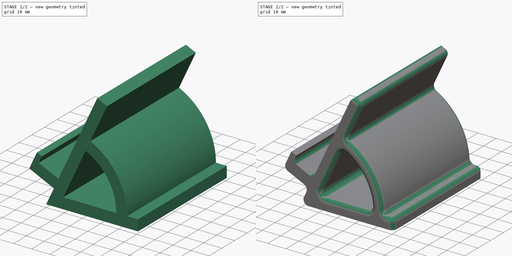
[diagram: build sequence overview — one tinted view per stage of 2, left to right]
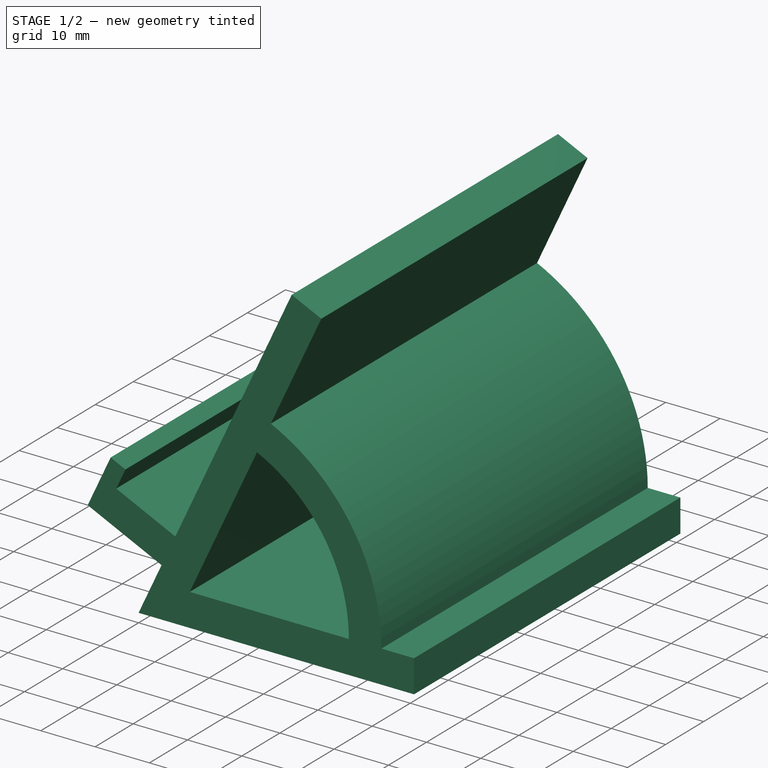
[diagram: stage 1 of 2 — iso view after this stage's code; geometry added in this stage tinted green]
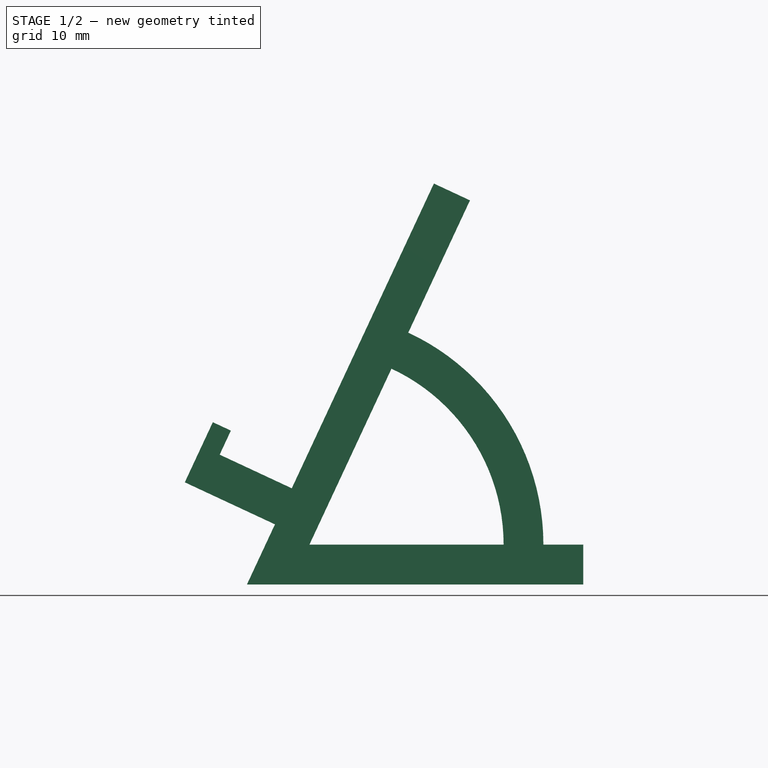
[diagram: stage 1 of 2 — front view after this stage's code; geometry added in this stage tinted green]
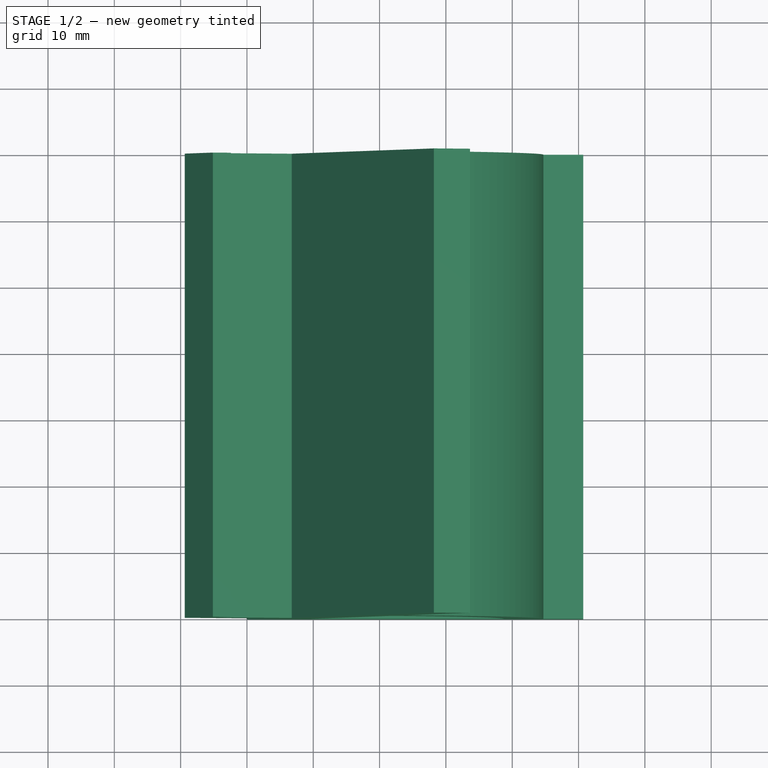
[diagram: stage 1 of 2 — top view after this stage's code; geometry added in this stage tinted green]
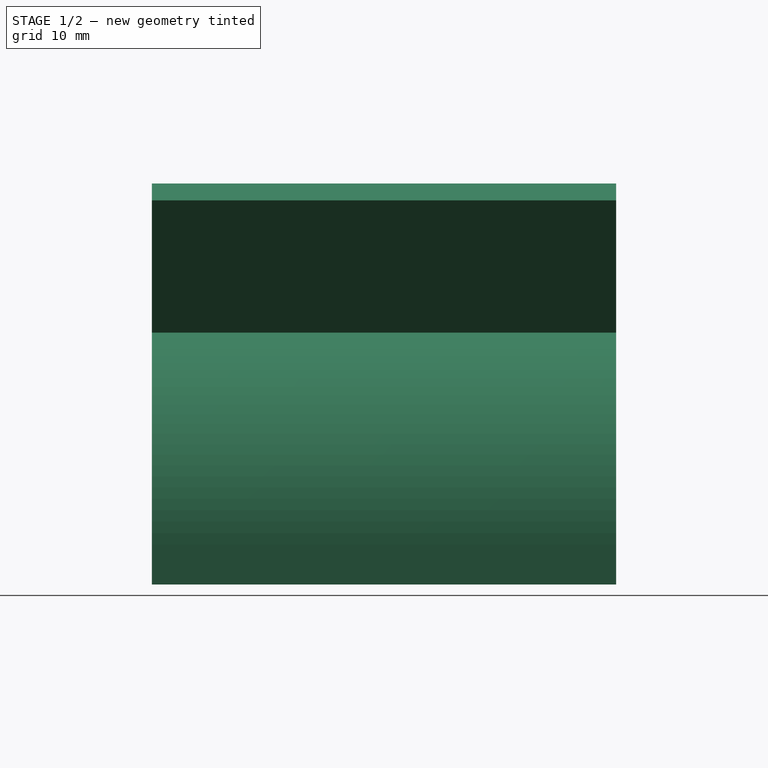
[diagram: stage 1 of 2 — right view after this stage's code; geometry added in this stage tinted green]
FCSTD DOCUMENT  (FreeCAD 1.1R39748 (Git))
Label: Бабушкинка подставка
License: All rights reserved
LicenseURL: https://en.wikipedia.org/wiki/All_rights_reserved
objects: App::Point×1, Sketcher::SketchObject×1, PartDesign::Pad×1, PartDesign::Fillet×1, PartDesign::Body×1
note: 9 computed .brp shape members not serialized (recipe doc carries the construction recipe); baked Part::Feature solids carry a one-line shape summary decoded from their .brp

FEATURE [App::Point] Origin001
  Role = Origin
FEATURE [Sketcher::SketchObject] Sketch
  ArcFitTolerance = 1e-06
  AttachmentSupport = -> [XZ_Plane]
  ExternalTypes = [0]
  FullyConstrained = false
  MakeInternals = false
  MapMode = 5
  Placement = pos=(0,0,0) rot=(1,0,0;1.5708rad)
  sketch-geometry (23):
    g0: LineSegment StartX=0 StartY=0 StartZ=0 EndX=4.22618 EndY=9.06308 EndZ=0
    g1: LineSegment StartX=4.22618 StartY=9.06308 StartZ=0 EndX=-9.36843 EndY=15.4024 EndZ=0
    g2: LineSegment StartX=6.76189 StartY=14.5009 StartZ=0 EndX=28.1886 EndY=60.4507 EndZ=0
    g3: LineSegment StartX=28.1886 StartY=60.4507 StartZ=0 EndX=33.6265 EndY=57.915 EndZ=0
    g4: LineSegment StartX=33.6265 StartY=57.915 StartZ=0 EndX=24.3289 EndY=37.9762 EndZ=0
    g5: LineSegment StartX=0 StartY=0 StartZ=0 EndX=50.7 EndY=0 EndZ=0
    g6: LineSegment StartX=50.7 StartY=0 StartZ=0 EndX=50.7 EndY=6 EndZ=0
    g7: ArcOfCircle CenterX=9.41811 CenterY=6 CenterZ=0 NormalX=0 NormalY=0 NormalZ=1 AngleXU=0 Radius=35.2819 StartAngle=1e-16 EndAngle=1.13446
    g8: LineSegment StartX=50.7 StartY=6 StartZ=0 EndX=44.7 EndY=6 EndZ=0
    g9: LineSegment [constr] StartX=0 StartY=0 StartZ=0 EndX=-14.2143 EndY=0 EndZ=0
    g10: LineSegment [constr] StartX=4.22618 StartY=9.06308 StartZ=0 EndX=6.76189 EndY=14.5009 EndZ=0
    g11: LineSegment [constr] StartX=44.7 StartY=6 StartZ=0 EndX=9.41811 EndY=6 EndZ=0
    g12: LineSegment [constr] StartX=24.3289 StartY=37.9762 StartZ=0 EndX=9.41811 EndY=6 EndZ=0
    g13: LineSegment StartX=9.41811 StartY=6 StartZ=0 EndX=38.7 EndY=6 EndZ=0
    g14: LineSegment StartX=9.41811 StartY=6 StartZ=0 EndX=21.7932 EndY=32.5384 EndZ=0
    g15: ArcOfCircle CenterX=9.41811 CenterY=6 CenterZ=0 NormalX=0 NormalY=0 NormalZ=1 AngleXU=0 Radius=29.2819 StartAngle=1e-16 EndAngle=1.13446
    g16: LineSegment [constr] StartX=28.1886 StartY=60.4507 StartZ=0 EndX=28.1886 EndY=0 EndZ=0
    g17: LineSegment StartX=-6.83272 StartY=20.8402 StartZ=0 EndX=-5.14225 EndY=24.4654 EndZ=0
    g18: LineSegment StartX=-5.14225 StartY=24.4654 StartZ=0 EndX=-2.42333 EndY=23.1976 EndZ=0
    g19: LineSegment StartX=-2.42333 StartY=23.1976 StartZ=0 EndX=-4.1138 EndY=19.5723 EndZ=0
    g20: LineSegment StartX=-4.1138 StartY=19.5723 StartZ=0 EndX=6.76189 EndY=14.5009 EndZ=0
    g21: LineSegment StartX=-6.83272 StartY=20.8402 StartZ=0 EndX=-9.36843 EndY=15.4024 EndZ=0
    g22: LineSegment [constr] StartX=-4.1138 StartY=19.5723 StartZ=0 EndX=-6.83272 EndY=20.8402 EndZ=0
  constraints (64):
    c: Coincident(g0,g1)
    c: Coincident(g20,g2)
    c: Coincident(g2,g3)
    c: Coincident(g3,g4)
    c: Coincident(g0,g5)
    c: Horizontal(g5)
    c: Coincident(g5,g6)
    c: Vertical(g6)
    c: Coincident(g7,g4)
    c: Horizontal(g8)
    c: Coincident(g7,g8)
    c: Coincident(g8,g6)
    c: Parallel(g0,g2)
    c: Parallel(g2,g4)
    c: Perpendicular(g1,g0)
    c: Coincident(g9,g0)
    c: Coincident(g10,g0)
    c: Coincident(g10,g20)
    c: Parallel(g10,g2)
    c: PointOnObject(g9,g-1)
    c: Coincident(g0,g-1)
    c: Perpendicular(g7,g8)
    c: Distance(g2,g2) = 50.7
    c: Perpendicular(g3,g2)
    c: Distance(g3,g3) = 6
    c: DistanceY(g6,g6) = 6
    c: Coincident(g11,g7)
    c: Coincident(g11,g7)
    c: Coincident(g12,g4)
    c: Coincident(g12,g7)
    c: Parallel(g4,g12)
    c: Coincident(g13,g7)
    c: PointOnObject(g13,g11)
    c: Coincident(g14,g7)
    c: PointOnObject(g14,g12)
    c: Coincident(g15,g7)
    c: Coincident(g15,g14)
    c: Coincident(g15,g13)
    c: DistanceX(g13,g7) = 6
    c: Distance(g1,g21) = 6
    c: Distance(g21,g20) = 15
    c: Distance(g0,g0) = 10
    c: Coincident(g16,g2)
    c: Vertical(g16)
    c: PointOnObject(g16,g5)
    c: DistanceY(g16,g16) = 60.4507
    c: Angle(g0,g5) = 2.00713
    c: Equal(g5,g2)
    c: DistanceX(g8,g8) = 6
    c: Coincident(g17,g18)
    c: Coincident(g18,g19)
    c: Coincident(g19,g20)
    c: Perpendicular(g18,g19)
    c: Perpendicular(g17,g18)
    c: Coincident(g21,g1)
    c: Coincident(g21,g17)
    c: Perpendicular(g1,g21)
    c: Perpendicular(g2,g20)
    c: Distance(g18,g18) = 3
    c: Distance(g17,g17) = 4
    c: Parallel(g21,g17)
    c: Coincident(g22,g19)
    c: Coincident(g22,g17)
    c: Parallel(g20,g22)
FEATURE [PartDesign::Pad] Pad
  Direction = (0,-1,2e-16)
  Length = 70
  Length2 = 10
  Placement = pos=(0,0,0) rot=(1,0,0;1.5708rad)
  Profile = -> Sketch
  ReferenceAxis = -> Sketch [N_Axis]
  Refine = true
  Suppressed = false
  Type = 0
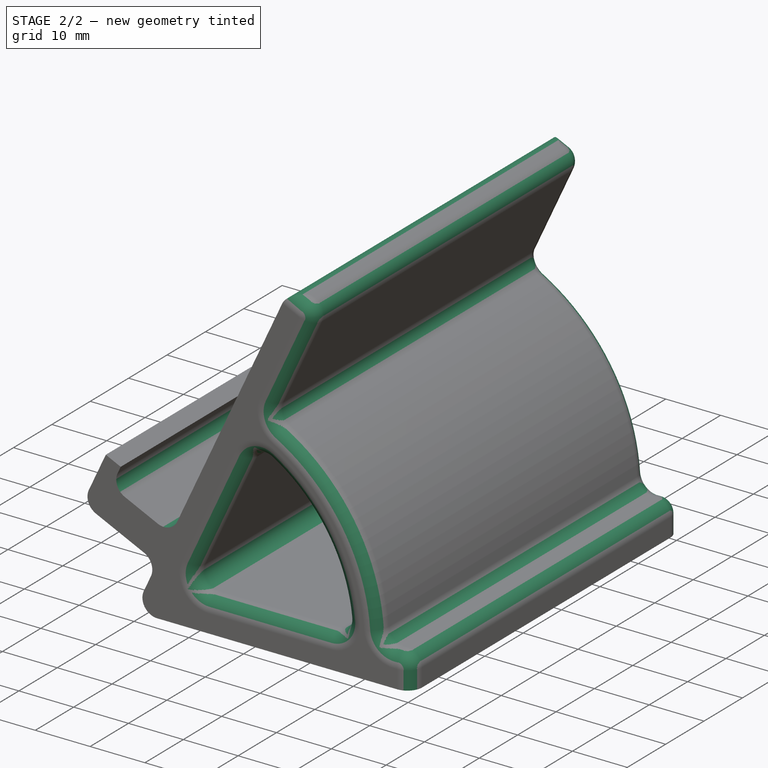
[diagram: stage 2 of 2 — iso view after this stage's code; geometry added in this stage tinted green]
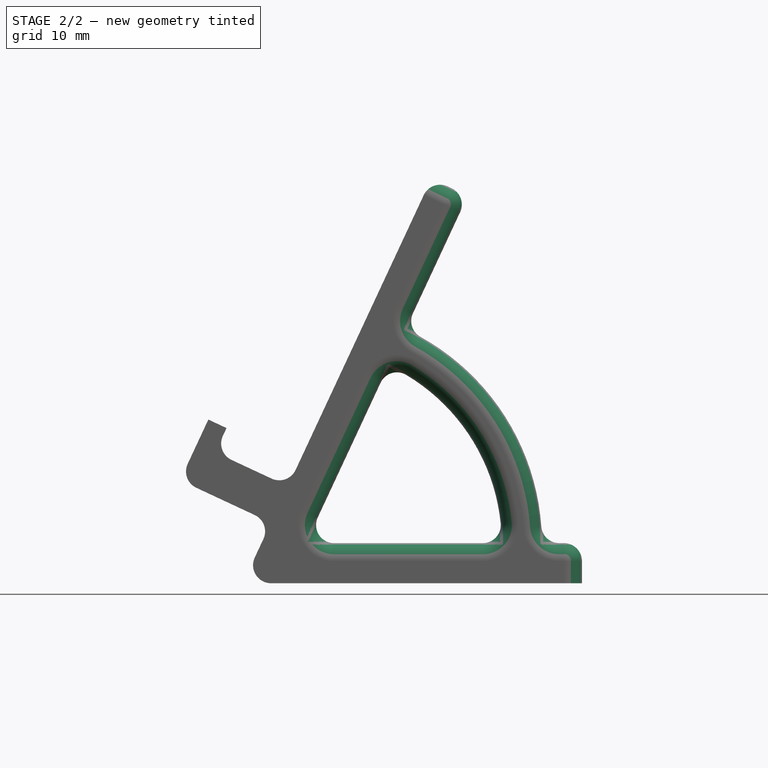
[diagram: stage 2 of 2 — front view after this stage's code; geometry added in this stage tinted green]
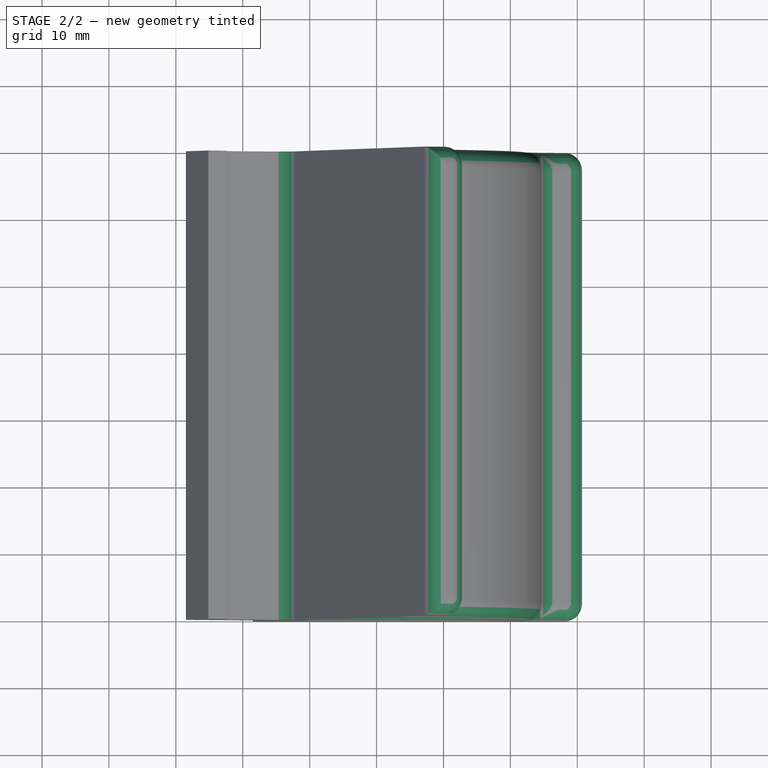
[diagram: stage 2 of 2 — top view after this stage's code; geometry added in this stage tinted green]
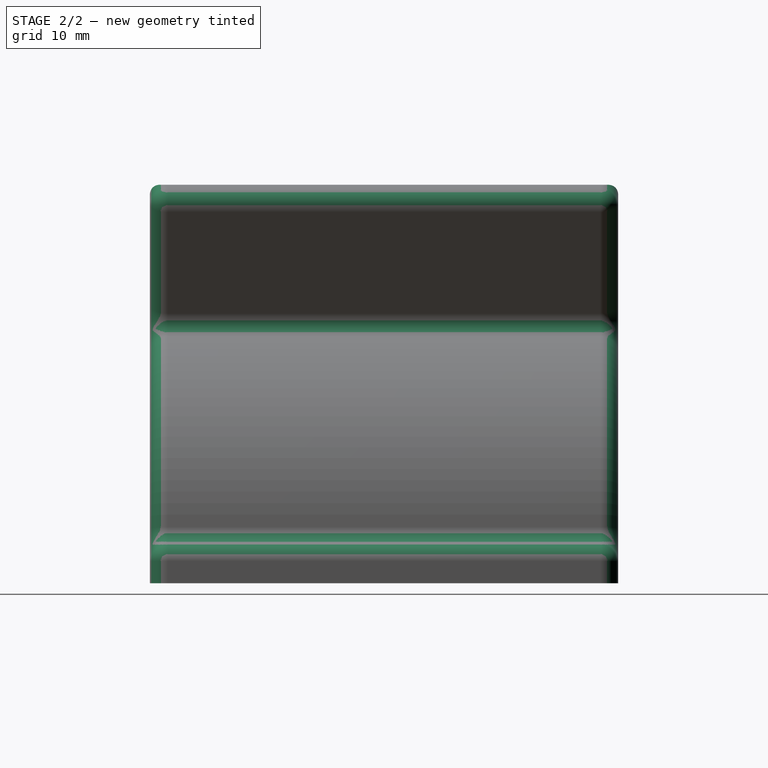
[diagram: stage 2 of 2 — right view after this stage's code; geometry added in this stage tinted green]
FEATURE [PartDesign::Fillet] Fillet
  Base = -> Pad [Edge30,Edge33,Edge42,Edge43,Edge45,Edge27,Edge24,Edge5,Edge8,Edge1,Edge18,Edge21,Edge11,Edge47,Edge46,Edge44,Edge40,Edge39,Edge41,Edge34,Edge37,Edge36,Edge35,Edge32,Edge13,Edge12,Edge31,Edge28,Edge29]
  BaseFeature = -> Pad
  Placement = pos=(0,0,0) rot=(1,0,0;1.5708rad)
  Radius = 2.7
  Refine = true
  SupportTransform = false
  Suppressed = false
  UseAllEdges = false
FEATURE [PartDesign::Body] Body  label="Тело"
  AllowCompound = false
  Group = -> [Sketch,Pad,Fillet]
  Origin = -> Origin
  Tip = -> Fillet
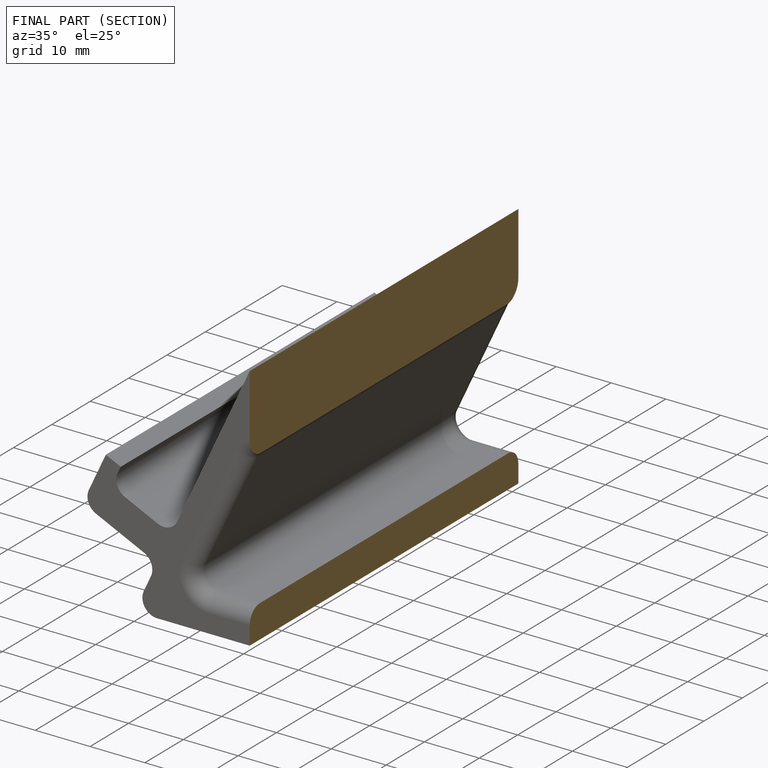
[diagram: finished part — half-section view (interior)]
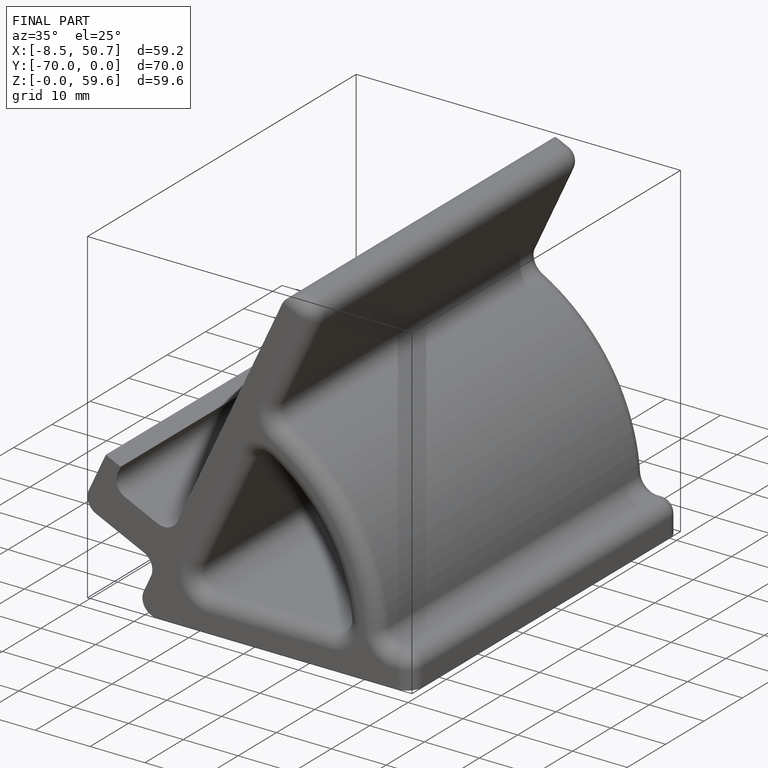
[diagram: finished part — iso view with bounding-box wireframe]
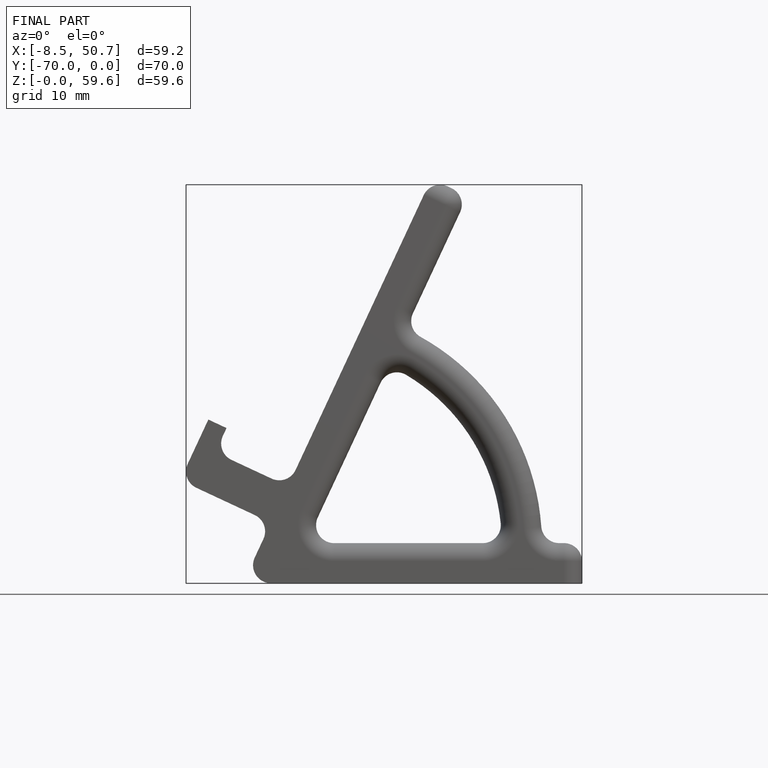
[diagram: finished part — front view with bounding-box wireframe]
